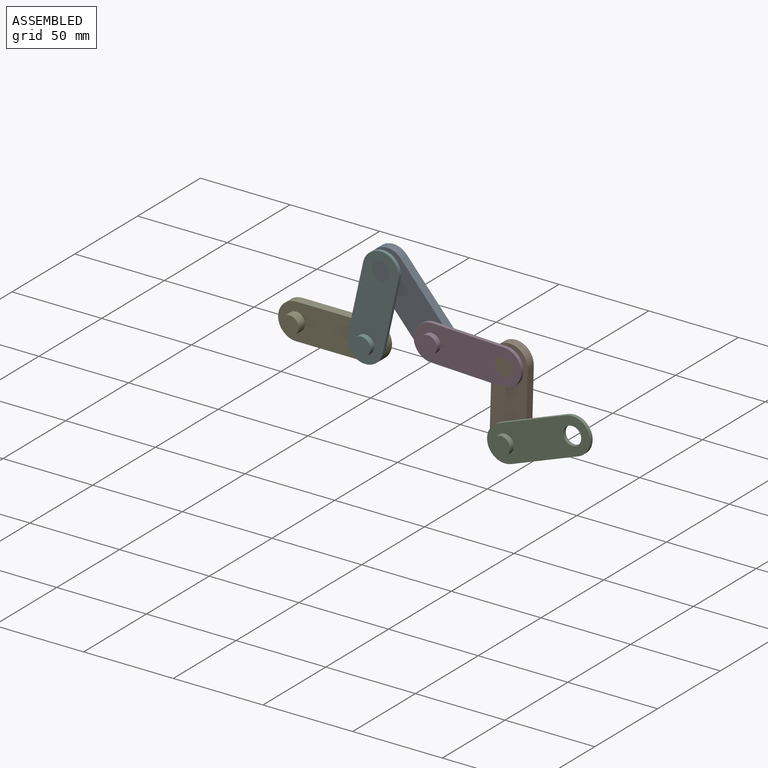
[diagram: assembled view]
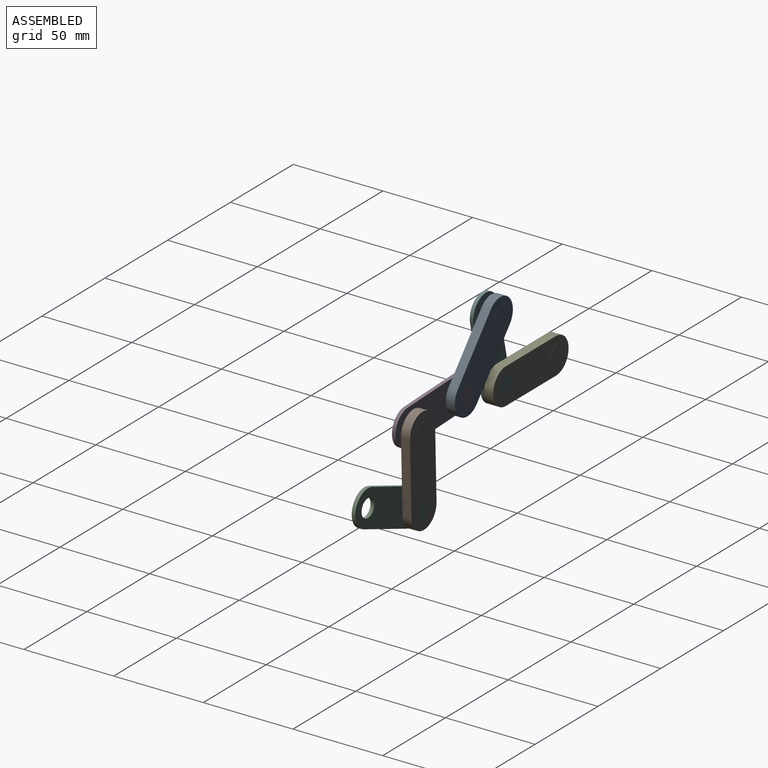
[diagram: assembled view, second angle]
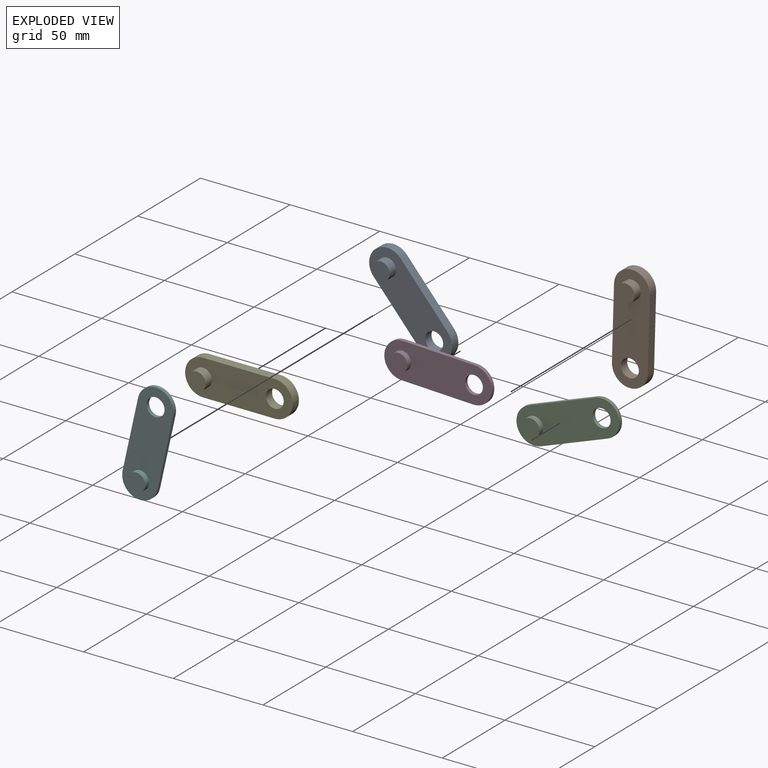
[diagram: exploded view]
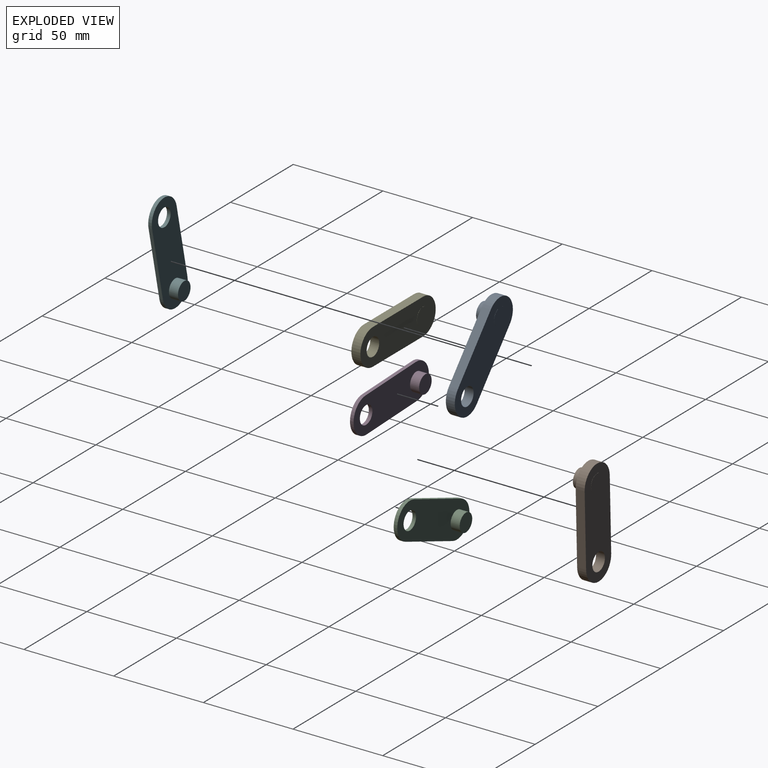
[diagram: exploded view, second angle]
ASSEMBLY  parts=6 mates=5
PART A: 11 faces, bbox 60x10.1x20 mm
  f0: plane 40x5mm, normal (0,0,1), area 200mm2, adj f1,f3,f5,f6
  f1: cylinder r=10mm len=20mm, axis (0,-1,0), area 157.1mm2, adj f0,f2,f5,f6
  f2: plane 40x5mm, normal (0,0,-1), area 200mm2, adj f1,f3,f5,f6
  f3: cylinder r=10mm len=20mm, axis (0,-1,0), area 157.1mm2, adj f0,f2,f5,f6
  f4: cylinder r=5mm len=10mm, axis (0,-1,0), area 157.1mm2, adj f5,f6
  f5: plane 60x20mm, normal (0,1,0), area 957.1mm2, adj f0,f1,f2,f3,f4,f9
  f6: plane 60x20mm, normal (0,-1,0), area 957.1mm2, adj f0,f1,f2,f3,f4,f8
  f7: plane 10x10mm, normal (0,-1,0), area 78.5mm2, adj f8
  f8: cylinder r=5mm len=10mm, axis (0,1,0), area 158.7mm2, adj f6,f7
  f9: cylinder r=5mm len=10mm, axis (0,1,0), area 1.6mm2, adj f5,f10
  f10: plane 10x10mm, normal (0,1,0), area 78.5mm2, adj f9
PART B: 11 faces, bbox 60x10.1x20 mm
  f0: plane 40x5mm, normal (0,0,1), area 200mm2, adj f1,f3,f5,f6
  f1: cylinder r=10mm len=20mm, axis (0,-1,0), area 157.1mm2, adj f0,f2,f5,f6
  f2: plane 40x5mm, normal (0,0,-1), area 200mm2, adj f1,f3,f5,f6
  f3: cylinder r=10mm len=20mm, axis (0,-1,0), area 157.1mm2, adj f0,f2,f5,f6
  f4: cylinder r=5mm len=10mm, axis (0,-1,0), area 157.1mm2, adj f5,f6
  f5: plane 60x20mm, normal (0,1,0), area 957.1mm2, adj f0,f1,f2,f3,f4,f9
  f6: plane 60x20mm, normal (0,-1,0), area 957.1mm2, adj f0,f1,f2,f3,f4,f8
  f7: plane 10x10mm, normal (0,-1,0), area 78.5mm2, adj f8
  f8: cylinder r=5mm len=10mm, axis (0,1,0), area 158.7mm2, adj f6,f7
  f9: cylinder r=5mm len=10mm, axis (0,1,0), area 1.6mm2, adj f5,f10
  f10: plane 10x10mm, normal (0,1,0), area 78.5mm2, adj f9
PART C: 11 faces, bbox 60x10.1x20 mm
  f0: plane 40x2mm, normal (0,0,1), area 80mm2, adj f1,f3,f5,f6
  f1: cylinder r=10mm len=20mm, axis (0,1,0), area 62.8mm2, adj f0,f2,f5,f6
  f2: plane 40x2mm, normal (0,0,-1), area 80mm2, adj f1,f3,f5,f6
  f3: cylinder r=10mm len=20mm, axis (0,1,0), area 62.8mm2, adj f0,f2,f5,f6
  f4: cylinder r=5mm len=10mm, axis (0,1,0), area 62.8mm2, adj f5,f6
  f5: plane 60x20mm, normal (0,-1,0), area 957.1mm2, adj f0,f1,f2,f3,f4,f9
  f6: plane 60x20mm, normal (0,1,0), area 957.1mm2, adj f0,f1,f2,f3,f4,f8
  f7: plane 10x10mm, normal (0,1,0), area 78.5mm2, adj f8
  f8: cylinder r=5mm len=10mm, axis (0,1,0), area 158.7mm2, adj f6,f7
  f9: cylinder r=5mm len=10mm, axis (0,1,0), area 95.8mm2, adj f5,f10
  f10: plane 10x10mm, normal (0,-1,0), area 78.5mm2, adj f9
PART D: 11 faces, bbox 60x10.1x20 mm
  f0: plane 40x2mm, normal (0,0,1), area 80mm2, adj f1,f3,f5,f6
  f1: cylinder r=10mm len=20mm, axis (0,1,0), area 62.8mm2, adj f0,f2,f5,f6
  f2: plane 40x2mm, normal (0,0,-1), area 80mm2, adj f1,f3,f5,f6
  f3: cylinder r=10mm len=20mm, axis (0,1,0), area 62.8mm2, adj f0,f2,f5,f6
  f4: cylinder r=5mm len=10mm, axis (0,1,0), area 62.8mm2, adj f5,f6
  f5: plane 60x20mm, normal (0,-1,0), area 957.1mm2, adj f0,f1,f2,f3,f4,f9
  f6: plane 60x20mm, normal (0,1,0), area 957.1mm2, adj f0,f1,f2,f3,f4,f8
  f7: plane 10x10mm, normal (0,1,0), area 78.5mm2, adj f8
  f8: cylinder r=5mm len=10mm, axis (0,1,0), area 158.7mm2, adj f6,f7
  f9: cylinder r=5mm len=10mm, axis (0,1,0), area 95.8mm2, adj f5,f10
  f10: plane 10x10mm, normal (0,-1,0), area 78.5mm2, adj f9
PART E: 11 faces, bbox 60x10.1x20 mm
  f0: plane 40x5mm, normal (0,0,1), area 200mm2, adj f1,f3,f5,f6
  f1: cylinder r=10mm len=20mm, axis (0,-1,0), area 157.1mm2, adj f0,f2,f5,f6
  f2: plane 40x5mm, normal (0,0,-1), area 200mm2, adj f1,f3,f5,f6
  f3: cylinder r=10mm len=20mm, axis (0,-1,0), area 157.1mm2, adj f0,f2,f5,f6
  f4: cylinder r=5mm len=10mm, axis (0,-1,0), area 157.1mm2, adj f5,f6
  f5: plane 60x20mm, normal (0,1,0), area 957.1mm2, adj f0,f1,f2,f3,f4,f9
  f6: plane 60x20mm, normal (0,-1,0), area 957.1mm2, adj f0,f1,f2,f3,f4,f8
  f7: plane 10x10mm, normal (0,-1,0), area 78.5mm2, adj f8
  f8: cylinder r=5mm len=10mm, axis (0,1,0), area 158.7mm2, adj f6,f7
  f9: cylinder r=5mm len=10mm, axis (0,1,0), area 1.6mm2, adj f5,f10
  f10: plane 10x10mm, normal (0,1,0), area 78.5mm2, adj f9
PART F: 11 faces, bbox 60x10.1x20 mm
  f0: plane 40x2mm, normal (0,0,1), area 80mm2, adj f1,f3,f5,f6
  f1: cylinder r=10mm len=20mm, axis (0,1,0), area 62.8mm2, adj f0,f2,f5,f6
  f2: plane 40x2mm, normal (0,0,-1), area 80mm2, adj f1,f3,f5,f6
  f3: cylinder r=10mm len=20mm, axis (0,1,0), area 62.8mm2, adj f0,f2,f5,f6
  f4: cylinder r=5mm len=10mm, axis (0,1,0), area 62.8mm2, adj f5,f6
  f5: plane 60x20mm, normal (0,-1,0), area 957.1mm2, adj f0,f1,f2,f3,f4,f9
  f6: plane 60x20mm, normal (0,1,0), area 957.1mm2, adj f0,f1,f2,f3,f4,f8
  f7: plane 10x10mm, normal (0,1,0), area 78.5mm2, adj f8
  f8: cylinder r=5mm len=10mm, axis (0,1,0), area 158.7mm2, adj f6,f7
  f9: cylinder r=5mm len=10mm, axis (0,1,0), area 95.8mm2, adj f5,f10
  f10: plane 10x10mm, normal (0,-1,0), area 78.5mm2, adj f9
PLACE A rot(axis=(0,1,0),49deg) t=(-23.16,21.13,102.17)mm
PLACE B rot(axis=(0,1,0),91.7deg) t=(100.22,24.13,170.01)mm
PLACE C rot(axis=(0,-1,0),20.4deg) t=(-93.01,24.08,-99.6)mm
PLACE D rot(axis=(0,1,0),2.3deg) t=(-64.26,21.08,16.43)mm
PLACE E t=(-19.27,18.13,2.78)mm fixed
PLACE F rot(axis=(0,-1,0),77.5deg) t=(12.08,18.08,-36.28)mm
MATE revolute F.f3 <-> A.f8  axis (0,-1,0) through (29.37,16.08,41.83)mm
MATE revolute D.f8 <-> A.f4  axis (0,1,0) through (55.64,26.13,11.67)mm
MATE revolute C.f8 <-> B.f3  axis (0,1,0) through (94.46,29.13,-29.91)mm
MATE revolute B.f8 <-> D.f4  axis (0,-1,0) through (95.61,19.08,10.08)mm
MATE revolute E.f3 <-> F.f8  axis (0,1,0) through (20.73,23.13,2.78)mm
